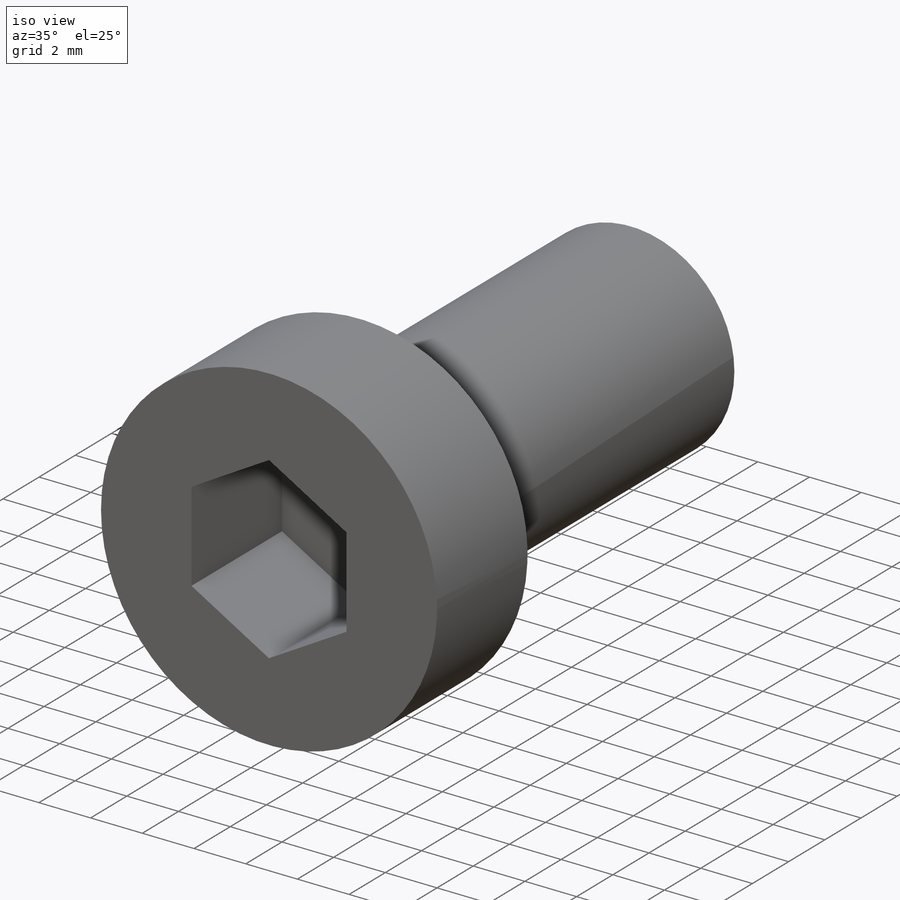
[diagram: iso view]
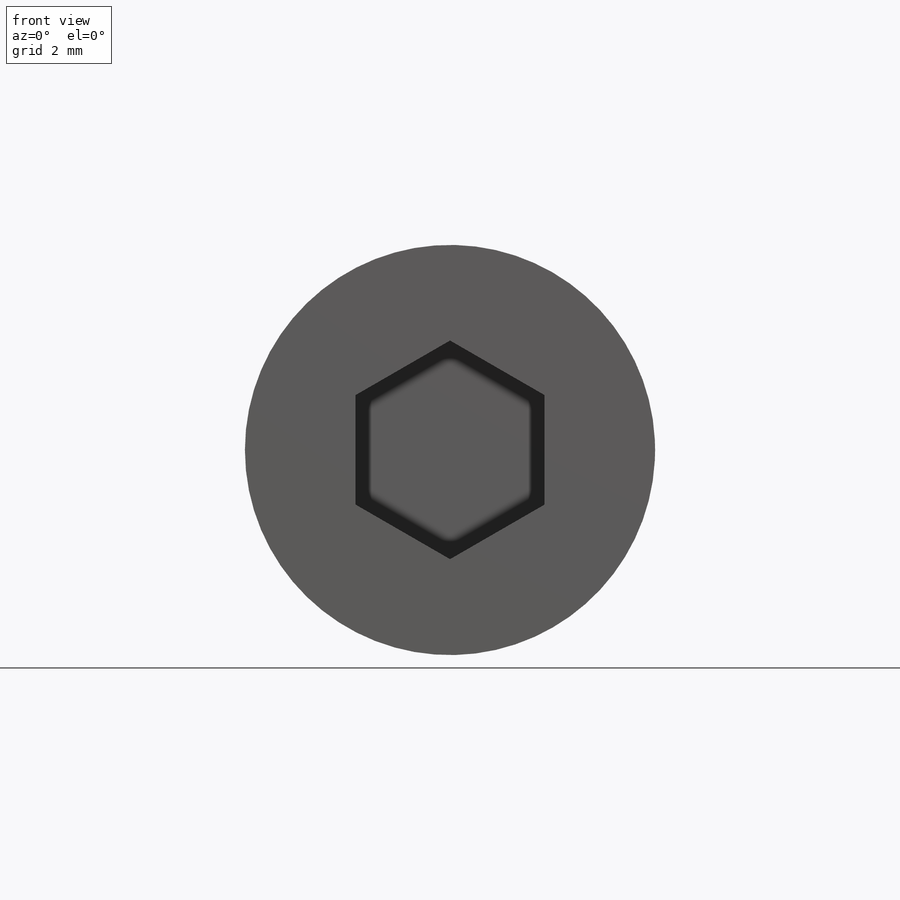
[diagram: front view]
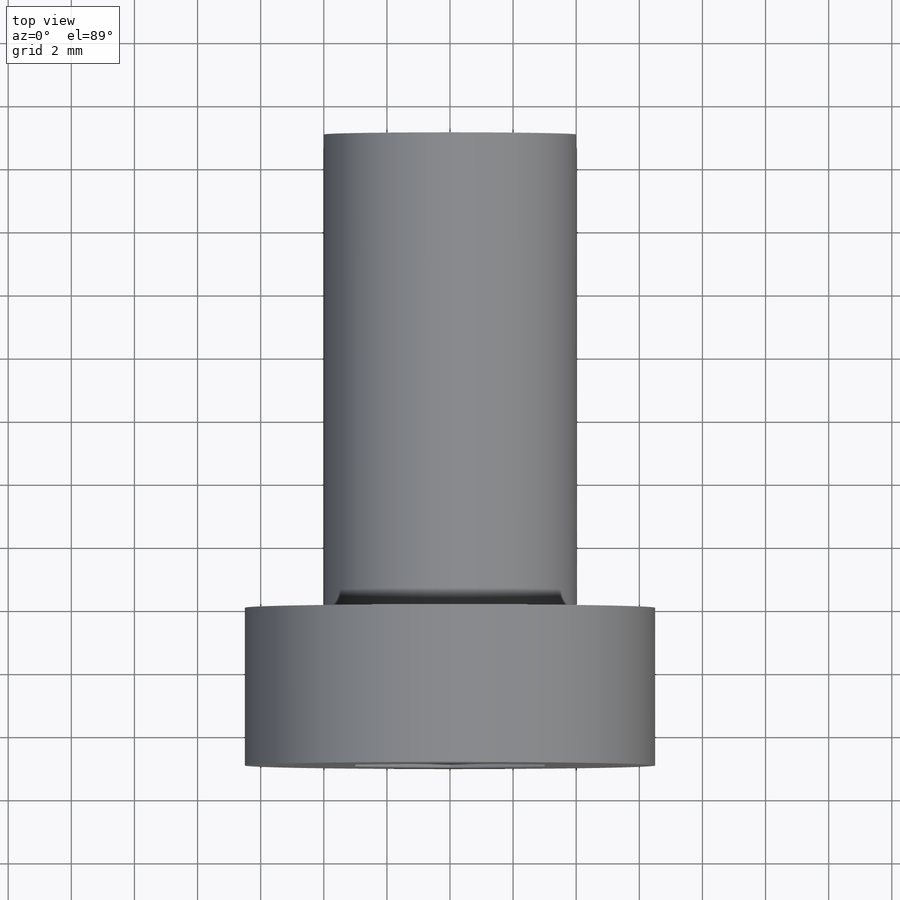
[diagram: top view]
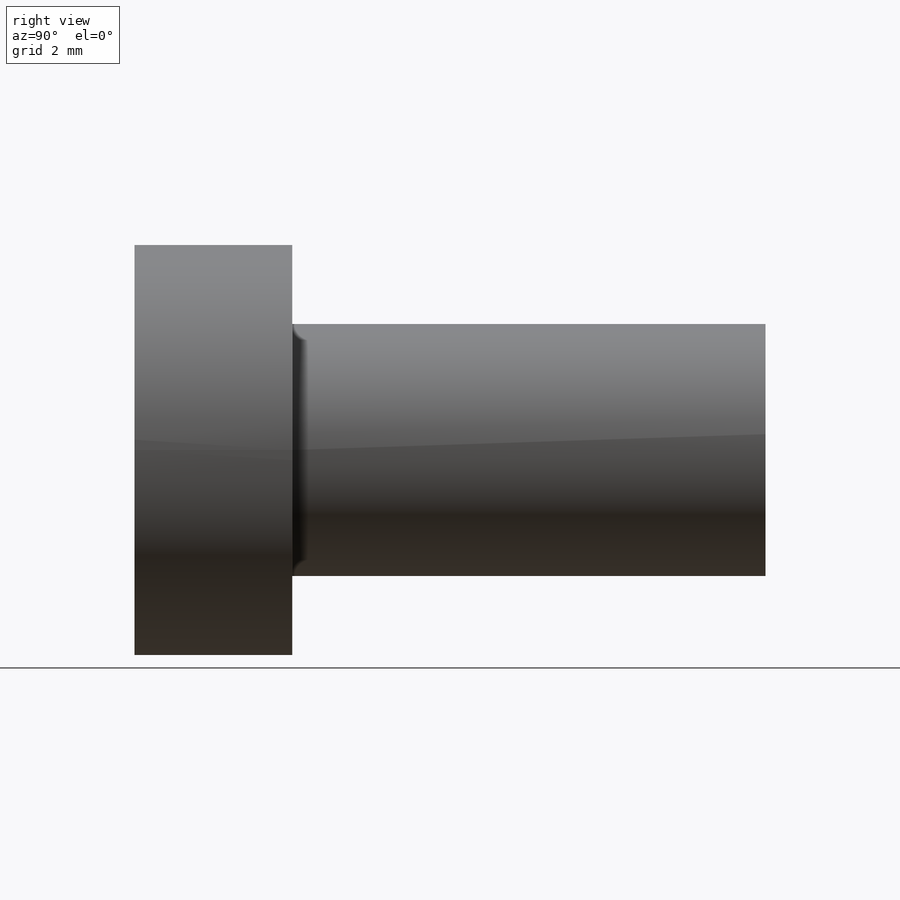
[diagram: right view]
SOLIDWORKS PART (.sldprt)
format: sldprt  version: not decoded by parser v0  size: 1,280,000 bytes
history: native  units: mm
features: plane x3, sketch x3, extrude x2, material x1, cut_extrude x1 + 1 further entry (+12 scaffold rows collapsed; 1 parser-record rows omitted)
feature tree (24):
  parser-record x1  (decoder bookkeeping rows leaked as tree rows — omitted from the tree; the rows remain in map.json)
  scaffold x12  (default folders/planes/origin — collapsed)
  material  "Material <not specified>"
  plane  "Plane1"
  plane  "Plane2"
  plane  "Plane3"
  "Design Table"
  sketch  "Sketch1"  dims[d2 Hoveddiameter=13.0mm]
  extrude  "Base-Extrude"  Depth=5mm k Hovedhøjde=5mm
  sketch  "Sketch2"  dims[M Gevind=8.0mm]
  extrude  "Boss-Extrude1"  Depth=15mm Længde=15mm
  sketch  "Sketch3"  dims[s Nøglevidde=6.0mm]
  cut_extrude  "Cut-Extrude1"  Depth=5mm t Nøgledybde=5mm ID=-1
decode coverage: 6 of 6 modeling features carry decoded parameters; 1 rows unclassified (native names shown)
note: suppression state not decoded; provenance and decode notes live in map.json
